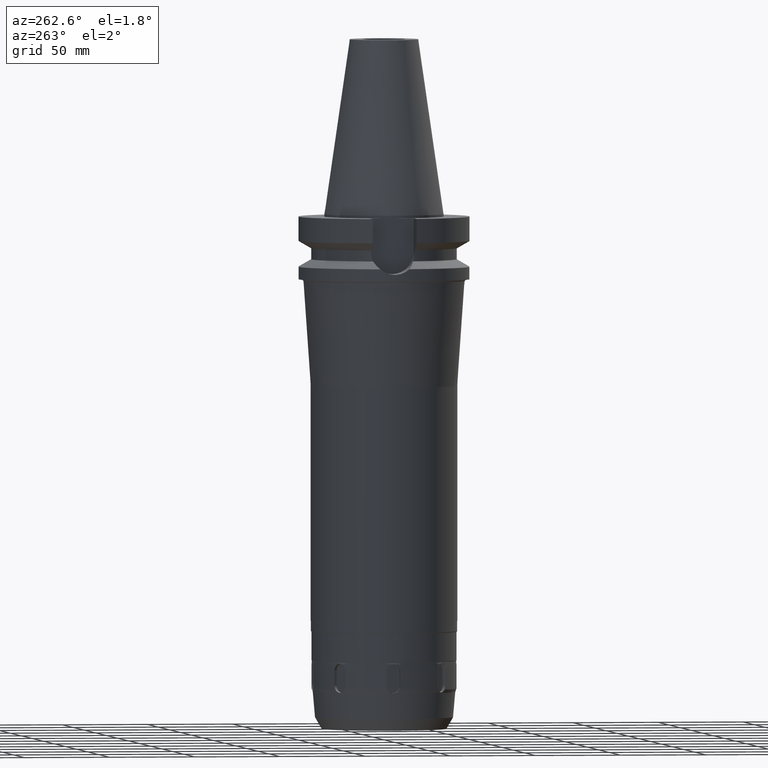
[diagram: clean part render]
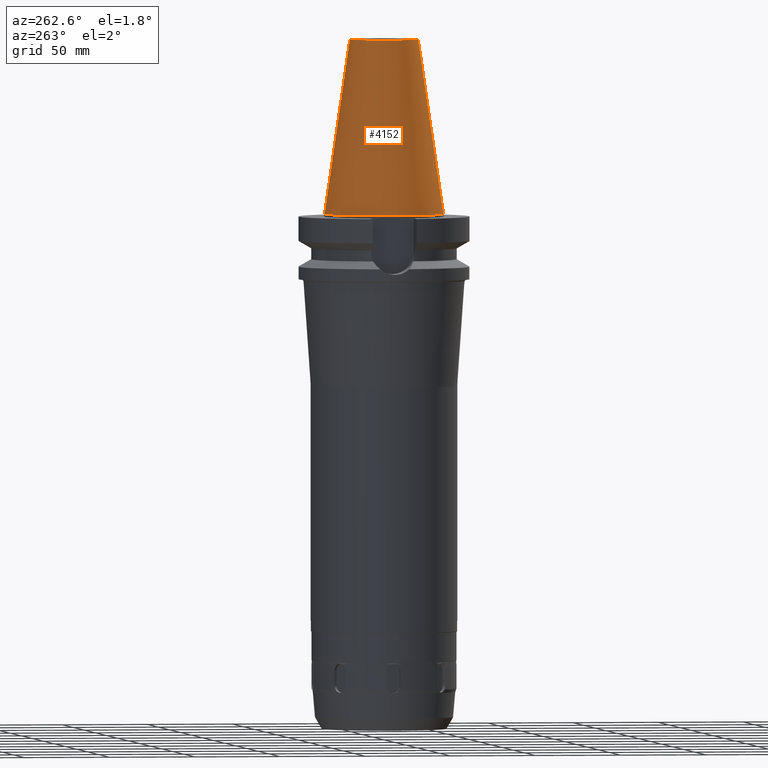
[diagram: same view with one face highlighted and labeled with its STEP entity id]
A machine part, auxiliary view. The second image highlights one B-rep face of the part: STEP entity #4152.
In plain terms, the highlighted conical surface has half-angle 8.297 deg.
Its self-contained STEP definition (entity closure, byte-faithful):
#1991=DIRECTION('',(0.E0,-1.443043893539E-1,-9.895333461856E-1));
#1992=VECTOR('',#1991,1.028767755957E2);
#1993=CARTESIAN_POINT('',(0.E0,-2.007942971896E1,1.018E2));
#1994=LINE('',#1993,#1992);
#1998=CARTESIAN_POINT('',(0.E0,1.847992019913E-14,8.526512829121E-13));
#1999=DIRECTION('',(0.E0,0.E0,-1.E0));
#2000=DIRECTION('',(0.E0,-1.E0,0.E0));
#2001=AXIS2_PLACEMENT_3D('',#1998,#1999,#2000);
#2006=DIRECTION('',(0.E0,1.443043893539E-1,-9.895333461856E-1));
#2007=VECTOR('',#2006,1.028767755957E2);
#2008=CARTESIAN_POINT('',(0.E0,2.007942971896E1,1.018E2));
#2009=LINE('',#2008,#2007);
#2021=CARTESIAN_POINT('',(0.E0,1.847992019913E-14,1.018E2));
#2022=DIRECTION('',(0.E0,0.E0,-1.E0));
#2023=DIRECTION('',(0.E0,-1.E0,0.E0));
#2024=AXIS2_PLACEMENT_3D('',#2021,#2022,#2023);
#2764=CARTESIAN_POINT('',(0.E0,3.4925E1,7.531752999057E-13));
#2765=VERTEX_POINT('',#2764);
#2766=CARTESIAN_POINT('',(0.E0,-3.4925E1,7.531752999057E-13));
#2767=VERTEX_POINT('',#2766);
#2768=CARTESIAN_POINT('',(0.E0,2.007942971896E1,1.018E2));
#2769=VERTEX_POINT('',#2768);
#2770=CARTESIAN_POINT('',(0.E0,-2.007942971896E1,1.018E2));
#2771=VERTEX_POINT('',#2770);
#4138=CARTESIAN_POINT('',(0.E0,1.847992019913E-14,5.09E1));
#4139=DIRECTION('',(0.E0,0.E0,-1.E0));
#4140=DIRECTION('',(0.E0,-1.E0,0.E0));
#4141=AXIS2_PLACEMENT_3D('',#4138,#4139,#4140);
#4142=CONICAL_SURFACE('',#4141,2.750221485948E1,8.297E0);
#4144=ORIENTED_EDGE('',*,*,#4143,.F.);
#4146=ORIENTED_EDGE('',*,*,#4145,.F.);
#4148=ORIENTED_EDGE('',*,*,#4147,.T.);
#4149=ORIENTED_EDGE('',*,*,#4131,.T.);
#4150=EDGE_LOOP('',(#4144,#4146,#4148,#4149));
#4151=FACE_OUTER_BOUND('',#4150,.F.);
#2002=CIRCLE('',#2001,3.4925E1);
#2025=CIRCLE('',#2024,2.007942971896E1);
#4131=EDGE_CURVE('',#2767,#2765,#2002,.T.);
#4143=EDGE_CURVE('',#2769,#2765,#2009,.T.);
#4145=EDGE_CURVE('',#2771,#2769,#2025,.T.);
#4147=EDGE_CURVE('',#2771,#2767,#1994,.T.);
#4152=ADVANCED_FACE('',(#4151),#4142,.T.);